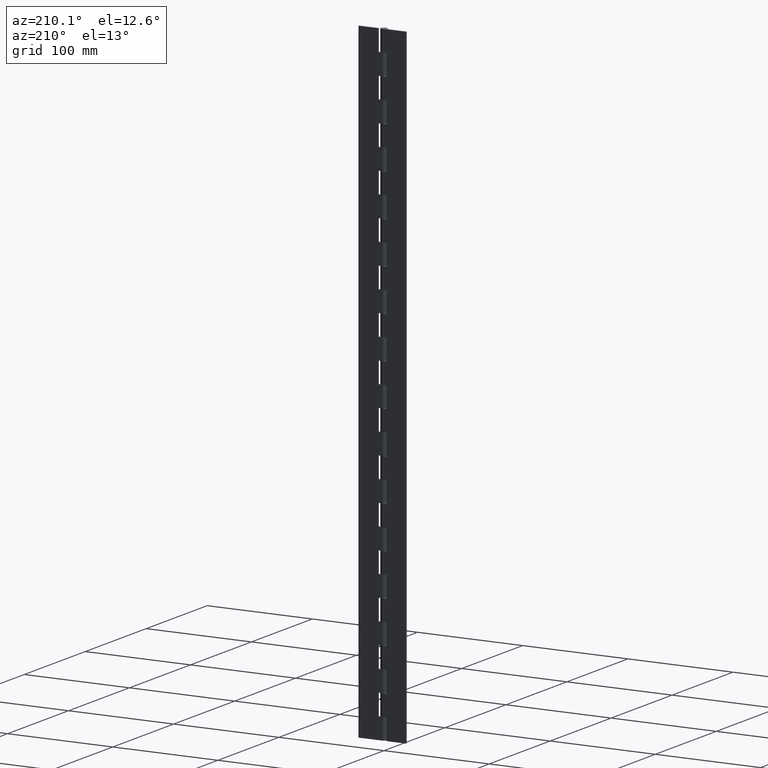
[diagram: clean part render]
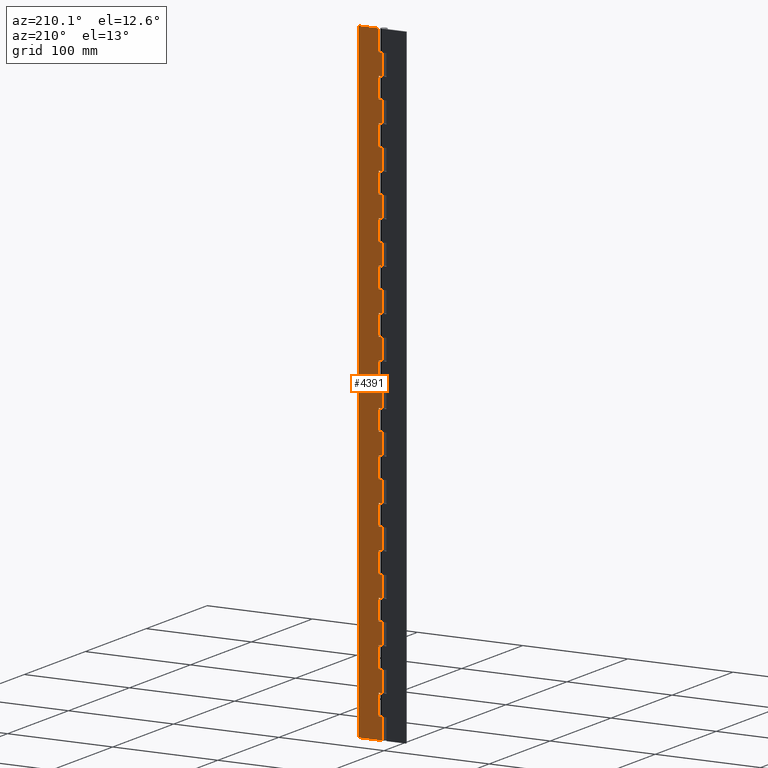
[diagram: same view with one face highlighted and labeled with its STEP entity id]
A machine part, auxiliary view. The second image highlights one B-rep face of the part: STEP entity #4391.
In plain terms, the highlighted face is a freeform B-spline surface patch.
Its self-contained STEP definition (entity closure, byte-faithful):
#302=CARTESIAN_POINT('',(0.0,3.0,580.0));
#303=VERTEX_POINT('',#302);
#358=CARTESIAN_POINT('',(3.999999999999901,3.0,580.0));
#359=VERTEX_POINT('',#358);
#365=CARTESIAN_POINT('',(0.0,3.0,580.0));
#366=CARTESIAN_POINT('',(3.999999999999901,3.0,580.0));
#367=QUASI_UNIFORM_CURVE('',1,(#365,#366),.UNSPECIFIED.,.F.,.U.);
#368=EDGE_CURVE('',#303,#359,#367,.T.);
#380=CARTESIAN_POINT('',(3.999999999999901,3.0,600.0));
#381=VERTEX_POINT('',#380);
#387=CARTESIAN_POINT('',(3.999999999999901,3.0,580.0));
#388=CARTESIAN_POINT('',(3.999999999999901,3.0,600.0));
#389=QUASI_UNIFORM_CURVE('',1,(#387,#388),.UNSPECIFIED.,.F.,.U.);
#390=EDGE_CURVE('',#359,#381,#389,.T.);
#408=CARTESIAN_POINT('',(0.0,3.0,540.0));
#409=VERTEX_POINT('',#408);
#464=CARTESIAN_POINT('',(3.999999999999901,3.0,540.0));
#465=VERTEX_POINT('',#464);
#471=CARTESIAN_POINT('',(0.0,3.0,540.0));
#472=CARTESIAN_POINT('',(3.999999999999901,3.0,540.0));
#473=QUASI_UNIFORM_CURVE('',1,(#471,#472),.UNSPECIFIED.,.F.,.U.);
#474=EDGE_CURVE('',#409,#465,#473,.T.);
#484=CARTESIAN_POINT('',(3.999999999999901,3.0,560.0));
#485=VERTEX_POINT('',#484);
#486=CARTESIAN_POINT('',(0.0,3.0,560.0));
#487=VERTEX_POINT('',#486);
#488=CARTESIAN_POINT('',(3.999999999999901,3.0,560.0));
#489=CARTESIAN_POINT('',(0.0,3.0,560.0));
#490=QUASI_UNIFORM_CURVE('',1,(#488,#489),.UNSPECIFIED.,.F.,.U.);
#491=EDGE_CURVE('',#485,#487,#490,.T.);
#563=CARTESIAN_POINT('',(3.999999999999901,3.0,540.0));
#564=CARTESIAN_POINT('',(3.999999999999901,3.0,560.0));
#565=QUASI_UNIFORM_CURVE('',1,(#563,#564),.UNSPECIFIED.,.F.,.U.);
#566=EDGE_CURVE('',#465,#485,#565,.T.);
#584=CARTESIAN_POINT('',(0.0,3.0,500.0));
#585=VERTEX_POINT('',#584);
#640=CARTESIAN_POINT('',(3.999999999999901,3.0,500.0));
#641=VERTEX_POINT('',#640);
#647=CARTESIAN_POINT('',(0.0,3.0,500.0));
#648=CARTESIAN_POINT('',(3.999999999999901,3.0,500.0));
#649=QUASI_UNIFORM_CURVE('',1,(#647,#648),.UNSPECIFIED.,.F.,.U.);
#650=EDGE_CURVE('',#585,#641,#649,.T.);
#660=CARTESIAN_POINT('',(3.999999999999901,3.0,520.0));
#661=VERTEX_POINT('',#660);
#662=CARTESIAN_POINT('',(0.0,3.0,520.0));
#663=VERTEX_POINT('',#662);
#664=CARTESIAN_POINT('',(3.999999999999901,3.0,520.0));
#665=CARTESIAN_POINT('',(0.0,3.0,520.0));
#666=QUASI_UNIFORM_CURVE('',1,(#664,#665),.UNSPECIFIED.,.F.,.U.);
#667=EDGE_CURVE('',#661,#663,#666,.T.);
#739=CARTESIAN_POINT('',(3.999999999999901,3.0,500.0));
#740=CARTESIAN_POINT('',(3.999999999999901,3.0,520.0));
#741=QUASI_UNIFORM_CURVE('',1,(#739,#740),.UNSPECIFIED.,.F.,.U.);
#742=EDGE_CURVE('',#641,#661,#741,.T.);
#760=CARTESIAN_POINT('',(0.0,3.0,460.0));
#761=VERTEX_POINT('',#760);
#816=CARTESIAN_POINT('',(3.999999999999901,3.0,460.0));
#817=VERTEX_POINT('',#816);
#823=CARTESIAN_POINT('',(0.0,3.0,460.0));
#824=CARTESIAN_POINT('',(3.999999999999901,3.0,460.0));
#825=QUASI_UNIFORM_CURVE('',1,(#823,#824),.UNSPECIFIED.,.F.,.U.);
#826=EDGE_CURVE('',#761,#817,#825,.T.);
#836=CARTESIAN_POINT('',(3.999999999999901,3.0,480.0));
#837=VERTEX_POINT('',#836);
#838=CARTESIAN_POINT('',(0.0,3.0,480.0));
#839=VERTEX_POINT('',#838);
#840=CARTESIAN_POINT('',(3.999999999999901,3.0,480.0));
#841=CARTESIAN_POINT('',(0.0,3.0,480.0));
#842=QUASI_UNIFORM_CURVE('',1,(#840,#841),.UNSPECIFIED.,.F.,.U.);
#843=EDGE_CURVE('',#837,#839,#842,.T.);
#915=CARTESIAN_POINT('',(3.999999999999901,3.0,460.0));
#916=CARTESIAN_POINT('',(3.999999999999901,3.0,480.0));
#917=QUASI_UNIFORM_CURVE('',1,(#915,#916),.UNSPECIFIED.,.F.,.U.);
#918=EDGE_CURVE('',#817,#837,#917,.T.);
#936=CARTESIAN_POINT('',(0.0,3.0,420.0));
#937=VERTEX_POINT('',#936);
#992=CARTESIAN_POINT('',(3.999999999999901,3.0,420.0));
#993=VERTEX_POINT('',#992);
#999=CARTESIAN_POINT('',(0.0,3.0,420.0));
#1000=CARTESIAN_POINT('',(3.999999999999901,3.0,420.0));
#1001=QUASI_UNIFORM_CURVE('',1,(#999,#1000),.UNSPECIFIED.,.F.,.U.);
#1002=EDGE_CURVE('',#937,#993,#1001,.T.);
#1012=CARTESIAN_POINT('',(3.999999999999901,3.0,440.0));
#1013=VERTEX_POINT('',#1012);
#1014=CARTESIAN_POINT('',(0.0,3.0,440.0));
#1015=VERTEX_POINT('',#1014);
#1016=CARTESIAN_POINT('',(3.999999999999901,3.0,440.0));
#1017=CARTESIAN_POINT('',(0.0,3.0,440.0));
#1018=QUASI_UNIFORM_CURVE('',1,(#1016,#1017),.UNSPECIFIED.,.F.,.U.);
#1019=EDGE_CURVE('',#1013,#1015,#1018,.T.);
#1091=CARTESIAN_POINT('',(3.999999999999901,3.0,420.0));
#1092=CARTESIAN_POINT('',(3.999999999999901,3.0,440.0));
#1093=QUASI_UNIFORM_CURVE('',1,(#1091,#1092),.UNSPECIFIED.,.F.,.U.);
#1094=EDGE_CURVE('',#993,#1013,#1093,.T.);
#1112=CARTESIAN_POINT('',(0.0,3.0,380.0));
#1113=VERTEX_POINT('',#1112);
#1168=CARTESIAN_POINT('',(3.999999999999901,3.0,380.0));
#1169=VERTEX_POINT('',#1168);
#1175=CARTESIAN_POINT('',(0.0,3.0,380.0));
#1176=CARTESIAN_POINT('',(3.999999999999901,3.0,380.0));
#1177=QUASI_UNIFORM_CURVE('',1,(#1175,#1176),.UNSPECIFIED.,.F.,.U.);
#1178=EDGE_CURVE('',#1113,#1169,#1177,.T.);
#1188=CARTESIAN_POINT('',(3.999999999999901,3.0,400.0));
#1189=VERTEX_POINT('',#1188);
#1190=CARTESIAN_POINT('',(0.0,3.0,400.0));
#1191=VERTEX_POINT('',#1190);
#1192=CARTESIAN_POINT('',(3.999999999999901,3.0,400.0));
#1193=CARTESIAN_POINT('',(0.0,3.0,400.0));
#1194=QUASI_UNIFORM_CURVE('',1,(#1192,#1193),.UNSPECIFIED.,.F.,.U.);
#1195=EDGE_CURVE('',#1189,#1191,#1194,.T.);
#1267=CARTESIAN_POINT('',(3.999999999999901,3.0,380.0));
#1268=CARTESIAN_POINT('',(3.999999999999901,3.0,400.0));
#1269=QUASI_UNIFORM_CURVE('',1,(#1267,#1268),.UNSPECIFIED.,.F.,.U.);
#1270=EDGE_CURVE('',#1169,#1189,#1269,.T.);
#1288=CARTESIAN_POINT('',(0.0,3.0,340.0));
#1289=VERTEX_POINT('',#1288);
#1344=CARTESIAN_POINT('',(3.999999999999901,3.0,340.0));
#1345=VERTEX_POINT('',#1344);
#1351=CARTESIAN_POINT('',(0.0,3.0,340.0));
#1352=CARTESIAN_POINT('',(3.999999999999901,3.0,340.0));
#1353=QUASI_UNIFORM_CURVE('',1,(#1351,#1352),.UNSPECIFIED.,.F.,.U.);
#1354=EDGE_CURVE('',#1289,#1345,#1353,.T.);
#1364=CARTESIAN_POINT('',(3.999999999999901,3.0,360.0));
#1365=VERTEX_POINT('',#1364);
#1366=CARTESIAN_POINT('',(0.0,3.0,360.0));
#1367=VERTEX_POINT('',#1366);
#1368=CARTESIAN_POINT('',(3.999999999999901,3.0,360.0));
#1369=CARTESIAN_POINT('',(0.0,3.0,360.0));
#1370=QUASI_UNIFORM_CURVE('',1,(#1368,#1369),.UNSPECIFIED.,.F.,.U.);
#1371=EDGE_CURVE('',#1365,#1367,#1370,.T.);
#1443=CARTESIAN_POINT('',(3.999999999999901,3.0,340.0));
#1444=CARTESIAN_POINT('',(3.999999999999901,3.0,360.0));
#1445=QUASI_UNIFORM_CURVE('',1,(#1443,#1444),.UNSPECIFIED.,.F.,.U.);
#1446=EDGE_CURVE('',#1345,#1365,#1445,.T.);
#1464=CARTESIAN_POINT('',(0.0,3.0,300.0));
#1465=VERTEX_POINT('',#1464);
#1520=CARTESIAN_POINT('',(3.999999999999901,3.0,300.0));
#1521=VERTEX_POINT('',#1520);
#1527=CARTESIAN_POINT('',(0.0,3.0,300.0));
#1528=CARTESIAN_POINT('',(3.999999999999901,3.0,300.0));
#1529=QUASI_UNIFORM_CURVE('',1,(#1527,#1528),.UNSPECIFIED.,.F.,.U.);
#1530=EDGE_CURVE('',#1465,#1521,#1529,.T.);
#1540=CARTESIAN_POINT('',(3.999999999999901,3.0,320.0));
#1541=VERTEX_POINT('',#1540);
#1542=CARTESIAN_POINT('',(0.0,3.0,320.0));
#1543=VERTEX_POINT('',#1542);
#1544=CARTESIAN_POINT('',(3.999999999999901,3.0,320.0));
#1545=CARTESIAN_POINT('',(0.0,3.0,320.0));
#1546=QUASI_UNIFORM_CURVE('',1,(#1544,#1545),.UNSPECIFIED.,.F.,.U.);
#1547=EDGE_CURVE('',#1541,#1543,#1546,.T.);
#1619=CARTESIAN_POINT('',(3.999999999999901,3.0,300.0));
#1620=CARTESIAN_POINT('',(3.999999999999901,3.0,320.0));
#1621=QUASI_UNIFORM_CURVE('',1,(#1619,#1620),.UNSPECIFIED.,.F.,.U.);
#1622=EDGE_CURVE('',#1521,#1541,#1621,.T.);
#1640=CARTESIAN_POINT('',(0.0,3.0,260.0));
#1641=VERTEX_POINT('',#1640);
#1696=CARTESIAN_POINT('',(3.999999999999901,3.0,260.0));
#1697=VERTEX_POINT('',#1696);
#1703=CARTESIAN_POINT('',(0.0,3.0,260.0));
#1704=CARTESIAN_POINT('',(3.999999999999901,3.0,260.0));
#1705=QUASI_UNIFORM_CURVE('',1,(#1703,#1704),.UNSPECIFIED.,.F.,.U.);
#1706=EDGE_CURVE('',#1641,#1697,#1705,.T.);
#1716=CARTESIAN_POINT('',(3.999999999999901,3.0,280.0));
#1717=VERTEX_POINT('',#1716);
#1718=CARTESIAN_POINT('',(0.0,3.0,280.0));
#1719=VERTEX_POINT('',#1718);
#1720=CARTESIAN_POINT('',(3.999999999999901,3.0,280.0));
#1721=CARTESIAN_POINT('',(0.0,3.0,280.0));
#1722=QUASI_UNIFORM_CURVE('',1,(#1720,#1721),.UNSPECIFIED.,.F.,.U.);
#1723=EDGE_CURVE('',#1717,#1719,#1722,.T.);
#1795=CARTESIAN_POINT('',(3.999999999999901,3.0,260.0));
#1796=CARTESIAN_POINT('',(3.999999999999901,3.0,280.0));
#1797=QUASI_UNIFORM_CURVE('',1,(#1795,#1796),.UNSPECIFIED.,.F.,.U.);
#1798=EDGE_CURVE('',#1697,#1717,#1797,.T.);
#1816=CARTESIAN_POINT('',(0.0,3.0,220.0));
#1817=VERTEX_POINT('',#1816);
#1872=CARTESIAN_POINT('',(3.999999999999901,3.0,220.0));
#1873=VERTEX_POINT('',#1872);
#1879=CARTESIAN_POINT('',(0.0,3.0,220.0));
#1880=CARTESIAN_POINT('',(3.999999999999901,3.0,220.0));
#1881=QUASI_UNIFORM_CURVE('',1,(#1879,#1880),.UNSPECIFIED.,.F.,.U.);
#1882=EDGE_CURVE('',#1817,#1873,#1881,.T.);
#1892=CARTESIAN_POINT('',(3.999999999999901,3.0,240.0));
#1893=VERTEX_POINT('',#1892);
#1894=CARTESIAN_POINT('',(0.0,3.0,240.0));
#1895=VERTEX_POINT('',#1894);
#1896=CARTESIAN_POINT('',(3.999999999999901,3.0,240.0));
#1897=CARTESIAN_POINT('',(0.0,3.0,240.0));
#1898=QUASI_UNIFORM_CURVE('',1,(#1896,#1897),.UNSPECIFIED.,.F.,.U.);
#1899=EDGE_CURVE('',#1893,#1895,#1898,.T.);
#1971=CARTESIAN_POINT('',(3.999999999999901,3.0,220.0));
#1972=CARTESIAN_POINT('',(3.999999999999901,3.0,240.0));
#1973=QUASI_UNIFORM_CURVE('',1,(#1971,#1972),.UNSPECIFIED.,.F.,.U.);
#1974=EDGE_CURVE('',#1873,#1893,#1973,.T.);
#1992=CARTESIAN_POINT('',(0.0,3.0,180.0));
#1993=VERTEX_POINT('',#1992);
#2048=CARTESIAN_POINT('',(3.999999999999901,3.0,180.0));
#2049=VERTEX_POINT('',#2048);
#2055=CARTESIAN_POINT('',(0.0,3.0,180.0));
#2056=CARTESIAN_POINT('',(3.999999999999901,3.0,180.0));
#2057=QUASI_UNIFORM_CURVE('',1,(#2055,#2056),.UNSPECIFIED.,.F.,.U.);
#2058=EDGE_CURVE('',#1993,#2049,#2057,.T.);
#2068=CARTESIAN_POINT('',(3.999999999999901,3.0,200.0));
#2069=VERTEX_POINT('',#2068);
#2070=CARTESIAN_POINT('',(0.0,3.0,200.0));
#2071=VERTEX_POINT('',#2070);
#2072=CARTESIAN_POINT('',(3.999999999999901,3.0,200.0));
#2073=CARTESIAN_POINT('',(0.0,3.0,200.0));
#2074=QUASI_UNIFORM_CURVE('',1,(#2072,#2073),.UNSPECIFIED.,.F.,.U.);
#2075=EDGE_CURVE('',#2069,#2071,#2074,.T.);
#2147=CARTESIAN_POINT('',(3.999999999999901,3.0,180.0));
#2148=CARTESIAN_POINT('',(3.999999999999901,3.0,200.0));
#2149=QUASI_UNIFORM_CURVE('',1,(#2147,#2148),.UNSPECIFIED.,.F.,.U.);
#2150=EDGE_CURVE('',#2049,#2069,#2149,.T.);
#2168=CARTESIAN_POINT('',(0.0,3.0,140.0));
#2169=VERTEX_POINT('',#2168);
#2224=CARTESIAN_POINT('',(3.999999999999901,3.0,140.0));
#2225=VERTEX_POINT('',#2224);
#2231=CARTESIAN_POINT('',(0.0,3.0,140.0));
#2232=CARTESIAN_POINT('',(3.999999999999901,3.0,140.0));
#2233=QUASI_UNIFORM_CURVE('',1,(#2231,#2232),.UNSPECIFIED.,.F.,.U.);
#2234=EDGE_CURVE('',#2169,#2225,#2233,.T.);
#2244=CARTESIAN_POINT('',(3.999999999999901,3.0,160.0));
#2245=VERTEX_POINT('',#2244);
#2246=CARTESIAN_POINT('',(0.0,3.0,160.0));
#2247=VERTEX_POINT('',#2246);
#2248=CARTESIAN_POINT('',(3.999999999999901,3.0,160.0));
#2249=CARTESIAN_POINT('',(0.0,3.0,160.0));
#2250=QUASI_UNIFORM_CURVE('',1,(#2248,#2249),.UNSPECIFIED.,.F.,.U.);
#2251=EDGE_CURVE('',#2245,#2247,#2250,.T.);
#2323=CARTESIAN_POINT('',(3.999999999999901,3.0,140.0));
#2324=CARTESIAN_POINT('',(3.999999999999901,3.0,160.0));
#2325=QUASI_UNIFORM_CURVE('',1,(#2323,#2324),.UNSPECIFIED.,.F.,.U.);
#2326=EDGE_CURVE('',#2225,#2245,#2325,.T.);
#2344=CARTESIAN_POINT('',(0.0,3.0,100.0));
#2345=VERTEX_POINT('',#2344);
#2400=CARTESIAN_POINT('',(3.999999999999901,3.0,100.0));
#2401=VERTEX_POINT('',#2400);
#2407=CARTESIAN_POINT('',(0.0,3.0,100.0));
#2408=CARTESIAN_POINT('',(3.999999999999901,3.0,100.0));
#2409=QUASI_UNIFORM_CURVE('',1,(#2407,#2408),.UNSPECIFIED.,.F.,.U.);
#2410=EDGE_CURVE('',#2345,#2401,#2409,.T.);
#2420=CARTESIAN_POINT('',(3.999999999999901,3.0,120.0));
#2421=VERTEX_POINT('',#2420);
#2422=CARTESIAN_POINT('',(0.0,3.0,120.0));
#2423=VERTEX_POINT('',#2422);
#2424=CARTESIAN_POINT('',(3.999999999999901,3.0,120.0));
#2425=CARTESIAN_POINT('',(0.0,3.0,120.0));
#2426=QUASI_UNIFORM_CURVE('',1,(#2424,#2425),.UNSPECIFIED.,.F.,.U.);
#2427=EDGE_CURVE('',#2421,#2423,#2426,.T.);
#2499=CARTESIAN_POINT('',(3.999999999999901,3.0,100.0));
#2500=CARTESIAN_POINT('',(3.999999999999901,3.0,120.0));
#2501=QUASI_UNIFORM_CURVE('',1,(#2499,#2500),.UNSPECIFIED.,.F.,.U.);
#2502=EDGE_CURVE('',#2401,#2421,#2501,.T.);
#2520=CARTESIAN_POINT('',(0.0,3.0,60.0));
#2521=VERTEX_POINT('',#2520);
#2576=CARTESIAN_POINT('',(3.999999999999901,3.0,60.0));
#2577=VERTEX_POINT('',#2576);
#2583=CARTESIAN_POINT('',(0.0,3.0,60.0));
#2584=CARTESIAN_POINT('',(3.999999999999901,3.0,60.0));
#2585=QUASI_UNIFORM_CURVE('',1,(#2583,#2584),.UNSPECIFIED.,.F.,.U.);
#2586=EDGE_CURVE('',#2521,#2577,#2585,.T.);
#2596=CARTESIAN_POINT('',(3.999999999999901,3.0,80.0));
#2597=VERTEX_POINT('',#2596);
#2598=CARTESIAN_POINT('',(0.0,3.0,80.0));
#2599=VERTEX_POINT('',#2598);
#2600=CARTESIAN_POINT('',(3.999999999999901,3.0,80.0));
#2601=CARTESIAN_POINT('',(0.0,3.0,80.0));
#2602=QUASI_UNIFORM_CURVE('',1,(#2600,#2601),.UNSPECIFIED.,.F.,.U.);
#2603=EDGE_CURVE('',#2597,#2599,#2602,.T.);
#2675=CARTESIAN_POINT('',(3.999999999999901,3.0,60.0));
#2676=CARTESIAN_POINT('',(3.999999999999901,3.0,80.0));
#2677=QUASI_UNIFORM_CURVE('',1,(#2675,#2676),.UNSPECIFIED.,.F.,.U.);
#2678=EDGE_CURVE('',#2577,#2597,#2677,.T.);
#2696=CARTESIAN_POINT('',(0.0,3.0,20.0));
#2697=VERTEX_POINT('',#2696);
#2752=CARTESIAN_POINT('',(3.999999999999901,3.0,20.0));
#2753=VERTEX_POINT('',#2752);
#2759=CARTESIAN_POINT('',(0.0,3.0,20.0));
#2760=CARTESIAN_POINT('',(3.999999999999901,3.0,20.0));
#2761=QUASI_UNIFORM_CURVE('',1,(#2759,#2760),.UNSPECIFIED.,.F.,.U.);
#2762=EDGE_CURVE('',#2697,#2753,#2761,.T.);
#2772=CARTESIAN_POINT('',(3.999999999999901,3.0,40.0));
#2773=VERTEX_POINT('',#2772);
#2774=CARTESIAN_POINT('',(0.0,3.0,40.0));
#2775=VERTEX_POINT('',#2774);
#2776=CARTESIAN_POINT('',(3.999999999999901,3.0,40.0));
#2777=CARTESIAN_POINT('',(0.0,3.0,40.0));
#2778=QUASI_UNIFORM_CURVE('',1,(#2776,#2777),.UNSPECIFIED.,.F.,.U.);
#2779=EDGE_CURVE('',#2773,#2775,#2778,.T.);
#2851=CARTESIAN_POINT('',(3.999999999999901,3.0,20.0));
#2852=CARTESIAN_POINT('',(3.999999999999901,3.0,40.0));
#2853=QUASI_UNIFORM_CURVE('',1,(#2851,#2852),.UNSPECIFIED.,.F.,.U.);
#2854=EDGE_CURVE('',#2753,#2773,#2853,.T.);
#2872=CARTESIAN_POINT('',(0.0,3.0,0.0));
#2873=VERTEX_POINT('',#2872);
#2893=CARTESIAN_POINT('',(22.500000000000000,3.0,0.0));
#2894=VERTEX_POINT('',#2893);
#2895=CARTESIAN_POINT('',(0.0,3.0,0.0));
#2896=CARTESIAN_POINT('',(22.500000000000000,3.0,0.0));
#2897=QUASI_UNIFORM_CURVE('',1,(#2895,#2896),.UNSPECIFIED.,.F.,.U.);
#2898=EDGE_CURVE('',#2873,#2894,#2897,.T.);
#2949=CARTESIAN_POINT('',(22.500000000000000,3.0,600.0));
#2950=VERTEX_POINT('',#2949);
#2951=CARTESIAN_POINT('',(22.500000000000000,3.0,600.0));
#2952=CARTESIAN_POINT('',(22.500000000000000,3.0,0.0));
#2953=QUASI_UNIFORM_CURVE('',1,(#2951,#2952),.UNSPECIFIED.,.F.,.U.);
#2954=EDGE_CURVE('',#2950,#2894,#2953,.T.);
#3047=CARTESIAN_POINT('',(0.0,3.0,20.0));
#3048=CARTESIAN_POINT('',(0.0,3.0,0.0));
#3049=QUASI_UNIFORM_CURVE('',1,(#3047,#3048),.UNSPECIFIED.,.F.,.U.);
#3050=EDGE_CURVE('',#2697,#2873,#3049,.T.);
#3133=CARTESIAN_POINT('',(0.0,3.0,60.0));
#3134=CARTESIAN_POINT('',(0.0,3.0,40.0));
#3135=QUASI_UNIFORM_CURVE('',1,(#3133,#3134),.UNSPECIFIED.,.F.,.U.);
#3136=EDGE_CURVE('',#2521,#2775,#3135,.T.);
#3219=CARTESIAN_POINT('',(0.0,3.0,100.0));
#3220=CARTESIAN_POINT('',(0.0,3.0,80.0));
#3221=QUASI_UNIFORM_CURVE('',1,(#3219,#3220),.UNSPECIFIED.,.F.,.U.);
#3222=EDGE_CURVE('',#2345,#2599,#3221,.T.);
#3305=CARTESIAN_POINT('',(0.0,3.0,140.0));
#3306=CARTESIAN_POINT('',(0.0,3.0,120.0));
#3307=QUASI_UNIFORM_CURVE('',1,(#3305,#3306),.UNSPECIFIED.,.F.,.U.);
#3308=EDGE_CURVE('',#2169,#2423,#3307,.T.);
#3391=CARTESIAN_POINT('',(0.0,3.0,180.0));
#3392=CARTESIAN_POINT('',(0.0,3.0,160.0));
#3393=QUASI_UNIFORM_CURVE('',1,(#3391,#3392),.UNSPECIFIED.,.F.,.U.);
#3394=EDGE_CURVE('',#1993,#2247,#3393,.T.);
#3477=CARTESIAN_POINT('',(0.0,3.0,220.0));
#3478=CARTESIAN_POINT('',(0.0,3.0,200.0));
#3479=QUASI_UNIFORM_CURVE('',1,(#3477,#3478),.UNSPECIFIED.,.F.,.U.);
#3480=EDGE_CURVE('',#1817,#2071,#3479,.T.);
#3563=CARTESIAN_POINT('',(0.0,3.0,260.0));
#3564=CARTESIAN_POINT('',(0.0,3.0,240.0));
#3565=QUASI_UNIFORM_CURVE('',1,(#3563,#3564),.UNSPECIFIED.,.F.,.U.);
#3566=EDGE_CURVE('',#1641,#1895,#3565,.T.);
#3649=CARTESIAN_POINT('',(0.0,3.0,300.0));
#3650=CARTESIAN_POINT('',(0.0,3.0,280.0));
#3651=QUASI_UNIFORM_CURVE('',1,(#3649,#3650),.UNSPECIFIED.,.F.,.U.);
#3652=EDGE_CURVE('',#1465,#1719,#3651,.T.);
#3735=CARTESIAN_POINT('',(0.0,3.0,340.0));
#3736=CARTESIAN_POINT('',(0.0,3.0,320.0));
#3737=QUASI_UNIFORM_CURVE('',1,(#3735,#3736),.UNSPECIFIED.,.F.,.U.);
#3738=EDGE_CURVE('',#1289,#1543,#3737,.T.);
#3821=CARTESIAN_POINT('',(0.0,3.0,380.0));
#3822=CARTESIAN_POINT('',(0.0,3.0,360.0));
#3823=QUASI_UNIFORM_CURVE('',1,(#3821,#3822),.UNSPECIFIED.,.F.,.U.);
#3824=EDGE_CURVE('',#1113,#1367,#3823,.T.);
#3907=CARTESIAN_POINT('',(0.0,3.0,420.0));
#3908=CARTESIAN_POINT('',(0.0,3.0,400.0));
#3909=QUASI_UNIFORM_CURVE('',1,(#3907,#3908),.UNSPECIFIED.,.F.,.U.);
#3910=EDGE_CURVE('',#937,#1191,#3909,.T.);
#3993=CARTESIAN_POINT('',(0.0,3.0,460.0));
#3994=CARTESIAN_POINT('',(0.0,3.0,440.0));
#3995=QUASI_UNIFORM_CURVE('',1,(#3993,#3994),.UNSPECIFIED.,.F.,.U.);
#3996=EDGE_CURVE('',#761,#1015,#3995,.T.);
#4079=CARTESIAN_POINT('',(0.0,3.0,500.0));
#4080=CARTESIAN_POINT('',(0.0,3.0,480.0));
#4081=QUASI_UNIFORM_CURVE('',1,(#4079,#4080),.UNSPECIFIED.,.F.,.U.);
#4082=EDGE_CURVE('',#585,#839,#4081,.T.);
#4165=CARTESIAN_POINT('',(0.0,3.0,540.0));
#4166=CARTESIAN_POINT('',(0.0,3.0,520.0));
#4167=QUASI_UNIFORM_CURVE('',1,(#4165,#4166),.UNSPECIFIED.,.F.,.U.);
#4168=EDGE_CURVE('',#409,#663,#4167,.T.);
#4187=CARTESIAN_POINT('',(3.999999999999901,3.0,600.0));
#4188=CARTESIAN_POINT('',(22.500000000000000,3.0,600.0));
#4189=QUASI_UNIFORM_CURVE('',1,(#4187,#4188),.UNSPECIFIED.,.F.,.U.);
#4190=EDGE_CURVE('',#381,#2950,#4189,.T.);
#4318=CARTESIAN_POINT('',(-1.123874956390635,3.0,-29.969998837083590));
#4319=CARTESIAN_POINT('',(-1.123874956390635,3.0,629.970014930337700));
#4320=CARTESIAN_POINT('',(23.623875559887662,3.0,-29.969998837083590));
#4321=CARTESIAN_POINT('',(23.623875559887662,3.0,629.970014930337700));
#4322=B_SPLINE_SURFACE_WITH_KNOTS('',1,1,((#4318,#4320),(#4319,#4321)),.UNSPECIFIED.,.F.,.F.,.U.,(2,2),(2,2),(0.0,659.940013767421310),(0.0,24.747750516278298),.UNSPECIFIED.);
#4323=ORIENTED_EDGE('',*,*,#368,.T.);
#4324=ORIENTED_EDGE('',*,*,#390,.T.);
#4325=ORIENTED_EDGE('',*,*,#4190,.T.);
#4326=ORIENTED_EDGE('',*,*,#2954,.T.);
#4327=ORIENTED_EDGE('',*,*,#2898,.F.);
#4328=ORIENTED_EDGE('',*,*,#3050,.F.);
#4329=ORIENTED_EDGE('',*,*,#2762,.T.);
#4330=ORIENTED_EDGE('',*,*,#2854,.T.);
#4331=ORIENTED_EDGE('',*,*,#2779,.T.);
#4332=ORIENTED_EDGE('',*,*,#3136,.F.);
#4333=ORIENTED_EDGE('',*,*,#2586,.T.);
#4334=ORIENTED_EDGE('',*,*,#2678,.T.);
#4335=ORIENTED_EDGE('',*,*,#2603,.T.);
#4336=ORIENTED_EDGE('',*,*,#3222,.F.);
#4337=ORIENTED_EDGE('',*,*,#2410,.T.);
#4338=ORIENTED_EDGE('',*,*,#2502,.T.);
#4339=ORIENTED_EDGE('',*,*,#2427,.T.);
#4340=ORIENTED_EDGE('',*,*,#3308,.F.);
#4341=ORIENTED_EDGE('',*,*,#2234,.T.);
#4342=ORIENTED_EDGE('',*,*,#2326,.T.);
#4343=ORIENTED_EDGE('',*,*,#2251,.T.);
#4344=ORIENTED_EDGE('',*,*,#3394,.F.);
#4345=ORIENTED_EDGE('',*,*,#2058,.T.);
#4346=ORIENTED_EDGE('',*,*,#2150,.T.);
#4347=ORIENTED_EDGE('',*,*,#2075,.T.);
#4348=ORIENTED_EDGE('',*,*,#3480,.F.);
#4349=ORIENTED_EDGE('',*,*,#1882,.T.);
#4350=ORIENTED_EDGE('',*,*,#1974,.T.);
#4351=ORIENTED_EDGE('',*,*,#1899,.T.);
#4352=ORIENTED_EDGE('',*,*,#3566,.F.);
#4353=ORIENTED_EDGE('',*,*,#1706,.T.);
#4354=ORIENTED_EDGE('',*,*,#1798,.T.);
#4355=ORIENTED_EDGE('',*,*,#1723,.T.);
#4356=ORIENTED_EDGE('',*,*,#3652,.F.);
#4357=ORIENTED_EDGE('',*,*,#1530,.T.);
#4358=ORIENTED_EDGE('',*,*,#1622,.T.);
#4359=ORIENTED_EDGE('',*,*,#1547,.T.);
#4360=ORIENTED_EDGE('',*,*,#3738,.F.);
#4361=ORIENTED_EDGE('',*,*,#1354,.T.);
#4362=ORIENTED_EDGE('',*,*,#1446,.T.);
#4363=ORIENTED_EDGE('',*,*,#1371,.T.);
#4364=ORIENTED_EDGE('',*,*,#3824,.F.);
#4365=ORIENTED_EDGE('',*,*,#1178,.T.);
#4366=ORIENTED_EDGE('',*,*,#1270,.T.);
#4367=ORIENTED_EDGE('',*,*,#1195,.T.);
#4368=ORIENTED_EDGE('',*,*,#3910,.F.);
#4369=ORIENTED_EDGE('',*,*,#1002,.T.);
#4370=ORIENTED_EDGE('',*,*,#1094,.T.);
#4371=ORIENTED_EDGE('',*,*,#1019,.T.);
#4372=ORIENTED_EDGE('',*,*,#3996,.F.);
#4373=ORIENTED_EDGE('',*,*,#826,.T.);
#4374=ORIENTED_EDGE('',*,*,#918,.T.);
#4375=ORIENTED_EDGE('',*,*,#843,.T.);
#4376=ORIENTED_EDGE('',*,*,#4082,.F.);
#4377=ORIENTED_EDGE('',*,*,#650,.T.);
#4378=ORIENTED_EDGE('',*,*,#742,.T.);
#4379=ORIENTED_EDGE('',*,*,#667,.T.);
#4380=ORIENTED_EDGE('',*,*,#4168,.F.);
#4381=ORIENTED_EDGE('',*,*,#474,.T.);
#4382=ORIENTED_EDGE('',*,*,#566,.T.);
#4383=ORIENTED_EDGE('',*,*,#491,.T.);
#4384=CARTESIAN_POINT('',(0.0,3.0,580.0));
#4385=CARTESIAN_POINT('',(0.0,3.0,560.0));
#4386=QUASI_UNIFORM_CURVE('',1,(#4384,#4385),.UNSPECIFIED.,.F.,.U.);
#4387=EDGE_CURVE('',#303,#487,#4386,.T.);
#4388=ORIENTED_EDGE('',*,*,#4387,.F.);
#4389=EDGE_LOOP('',(#4323,#4324,#4325,#4326,#4327,#4328,#4329,#4330,#4331,#4332,#4333,#4334,#4335,#4336,#4337,#4338,#4339,#4340,#4341,#4342,#4343,#4344,#4345,#4346,#4347,#4348,#4349,#4350,#4351,#4352,#4353,#4354,#4355,#4356,#4357,#4358,#4359,#4360,#4361,#4362,#4363,#4364,#4365,#4366,#4367,#4368,#4369,#4370,#4371,#4372,#4373,#4374,#4375,#4376,#4377,#4378,#4379,#4380,#4381,#4382,#4383,#4388));
#4390=FACE_OUTER_BOUND('',#4389,.T.);
#4391=ADVANCED_FACE('',(#4390),#4322,.T.);